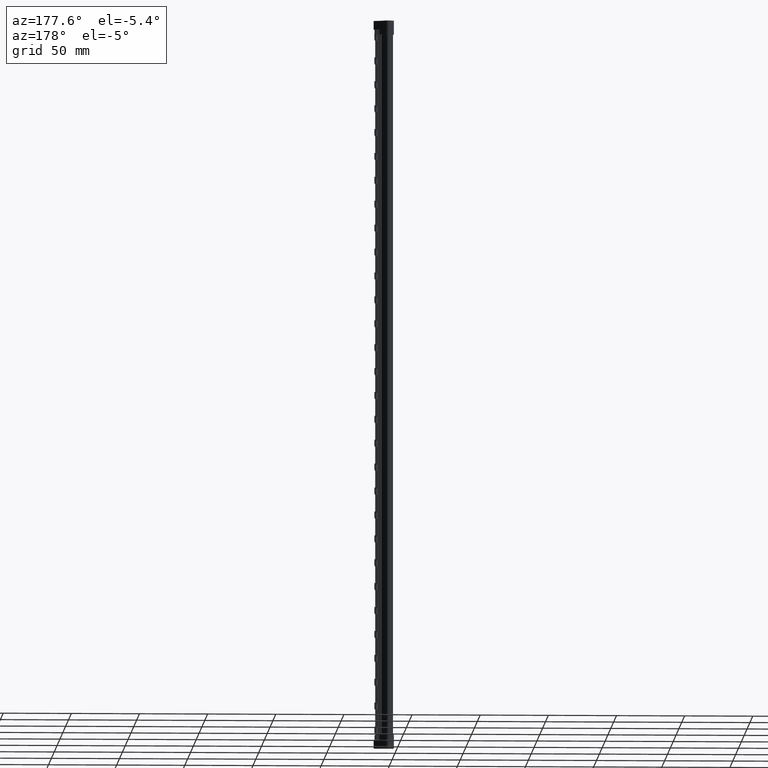
[diagram: clean part render]
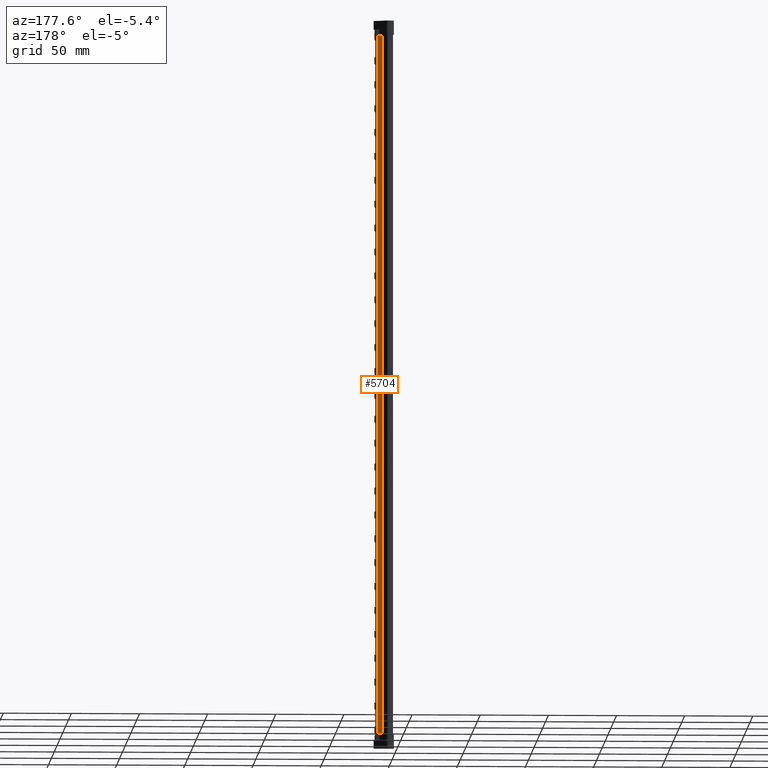
[diagram: same view with one face highlighted and labeled with its STEP entity id]
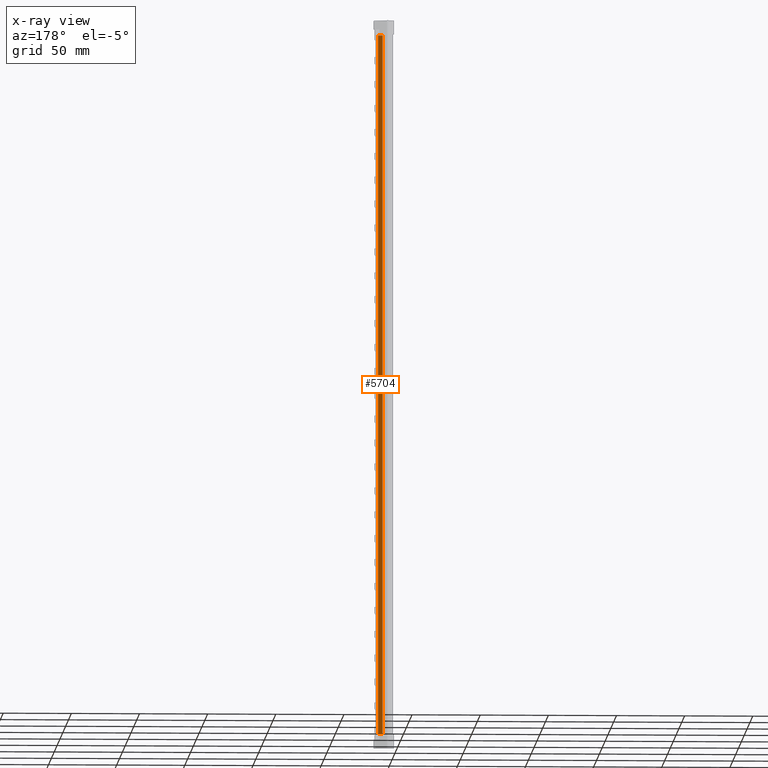
[diagram: x-ray of the same camera — body ghosted, the highlighted face saturated]
A machine part, auxiliary view. The second image highlights one B-rep face of the part: STEP entity #5704.
The next image is the same camera in x-ray: the body ghosted, the highlighted face saturated — about 0% of this face is hidden behind the body in this view.
In plain terms, the highlighted planar face has unit normal (-0, -1, 0).
Its self-contained STEP definition (entity closure, byte-faithful):
#783 = ORIENTED_EDGE ( 'NONE', *, *, #16965, .T. ) ;
#813 = ORIENTED_EDGE ( 'NONE', *, *, #22785, .T. ) ;
#843 = ORIENTED_EDGE ( 'NONE', *, *, #16964, .T. ) ;
#846 = ORIENTED_EDGE ( 'NONE', *, *, #16917, .F. ) ;
#1436 = VECTOR ( 'NONE', #19236, 1000.000000000000000 ) ;
#1487 = VECTOR ( 'NONE', #19351, 1000.000000000000000 ) ;
#1496 = VECTOR ( 'NONE', #19353, 1000.000000000000000 ) ;
#4121 = EDGE_LOOP ( 'NONE', ( #846, #843, #813, #783 ) ) ;
#5704 = ADVANCED_FACE ( 'NONE', ( #41399 ), #41492, .F. ) ;
#16917 = EDGE_CURVE ( 'NONE', #23226, #23154, #19256, .T. ) ;
#16964 = EDGE_CURVE ( 'NONE', #23226, #34430, #19341, .T. ) ;
#16965 = EDGE_CURVE ( 'NONE', #34431, #23154, #19331, .T. ) ;
#19224 = CARTESIAN_POINT ( 'NONE',  ( 6.977833211811479000, 2.600000585347644200, 219.0000000000000000 ) ) ;
#19236 = DIRECTION ( 'NONE',  ( -1.174935236590071000E-018, -5.041208906165829300E-019, -1.000000000000000000 ) ) ;
#19256 = LINE ( 'NONE', #19224, #1436 ) ;
#19331 = LINE ( 'NONE', #19352, #1496 ) ;
#19341 = LINE ( 'NONE', #19350, #1487 ) ;
#19350 = CARTESIAN_POINT ( 'NONE',  ( 0.5999928904455424900, 2.600000585347678400, 209.0000000000000300 ) ) ;
#19351 = DIRECTION ( 'NONE',  ( 1.000000000000000000, -8.886972758947302100E-049, 1.654357377733165300E-024 ) ) ;
#19352 = CARTESIAN_POINT ( 'NONE',  ( 0.5999928904455424900, 2.600000585347678400, -304.9999999999999400 ) ) ;
#19353 = DIRECTION ( 'NONE',  ( -1.000000000000000000, 8.886972758947302100E-049, -1.654357377733165300E-024 ) ) ;
#22785 = EDGE_CURVE ( 'NONE', #34430, #34431, #42428, .T. ) ;
#23154 = VERTEX_POINT ( 'NONE', #44138 ) ;
#23226 = VERTEX_POINT ( 'NONE', #42845 ) ;
#31838 = AXIS2_PLACEMENT_3D ( 'NONE', #41502, #41400, #41430 ) ;
#34430 = VERTEX_POINT ( 'NONE', #43754 ) ;
#34431 = VERTEX_POINT ( 'NONE', #43759 ) ;
#37452 = VECTOR ( 'NONE', #42436, 1000.000000000000000 ) ;
#41399 = FACE_OUTER_BOUND ( 'NONE', #4121, .T. ) ;
#41400 = DIRECTION ( 'NONE',  ( -4.379063324521067500E-047, -1.000000000000000000, 2.593268936129209800E-023 ) ) ;
#41430 = DIRECTION ( 'NONE',  ( 1.654357377733165500E-024, -2.593268936129209800E-023, -1.000000000000000000 ) ) ;
#41492 = PLANE ( 'NONE',  #31838 ) ;
#41502 = CARTESIAN_POINT ( 'NONE',  ( 0.5999928904455442700, 2.600000585347644700, 207.9000000000000100 ) ) ;
#42428 = LINE ( 'NONE', #42456, #37452 ) ;
#42436 = DIRECTION ( 'NONE',  ( 1.654357783328366900E-024, -2.593268938664190700E-023, -1.000000000000000000 ) ) ;
#42456 = CARTESIAN_POINT ( 'NONE',  ( 10.37430495582721900, 2.600000585347678400, 209.0000000000000300 ) ) ;
#42845 = CARTESIAN_POINT ( 'NONE',  ( 6.977833211811479000, 2.600000585347644200, 209.0000000000000300 ) ) ;
#43754 = CARTESIAN_POINT ( 'NONE',  ( 10.37430495582721900, 2.600000585347678400, 209.0000000000000300 ) ) ;
#43759 = CARTESIAN_POINT ( 'NONE',  ( 10.37430495582721900, 2.600000585347678400, -305.0000000000000000 ) ) ;
#44138 = CARTESIAN_POINT ( 'NONE',  ( 6.977833211811478100, 2.600000585347643800, -304.9999999999999400 ) ) ;